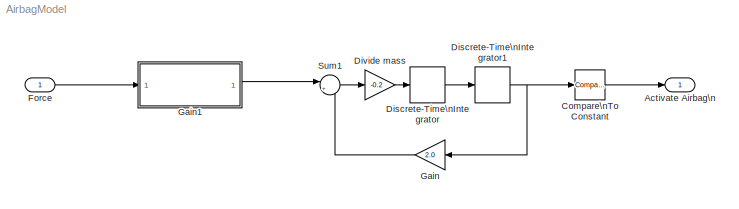
MODEL AirbagModel
KIND model
BLOCK [Outport] Activate Airbag\n
  IconDisplay = Port number
  SID = 14
BLOCK [Reference] Compare\nTo Constant  REF=simulink/Logic and Bit\nOperations/Compare\nTo Constant
  OutDataTypeStr = boolean
  Ports = [1, 1]
  SID = 17
  SourceBlock = simulink/Logic and Bit\nOperations/Compare\nTo Constant
  SourceType = Compare To Constant
  ZeroCross = on
  const = 3.0
  relop = <=
BLOCK [DiscreteIntegrator] Discrete-Time\nIntegrator
  Ports = [1, 1]
  SID = 15
BLOCK [DiscreteIntegrator] Discrete-Time\nIntegrator1
  Ports = [1, 1]
  SID = 16
BLOCK [Gain] Divide mass
  Gain = -0.2
  OutDataTypeStr = Inherit: Inherit via internal rule
  ParamDataTypeStr = Inherit: Inherit via internal rule
  SID = 9
  SaturateOnIntegerOverflow = off
BLOCK [Inport] Force
  IconDisplay = Port number
  OutDataTypeStr = single
  SID = 8
BLOCK [Gain] Gain
  Gain = 2.0
  OutDataTypeStr = Inherit: Inherit via internal rule
  ParamDataTypeStr = Inherit: Inherit via internal rule
  SID = 10
  SaturateOnIntegerOverflow = off
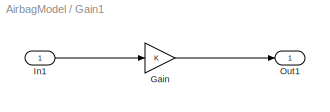
BLOCK [SubSystem] Gain1
  Ports = [1, 1]
  RequestExecContextInheritance = off
  SID = 19
BLOCK [Gain] Gain1/Gain
  OutDataTypeStr = Inherit: Inherit via internal rule
  ParamDataTypeStr = Inherit: Inherit via internal rule
  SID = 21
  SaturateOnIntegerOverflow = off
BLOCK [Inport] Gain1/In1
  IconDisplay = Port number
  SID = 20
BLOCK [Outport] Gain1/Out1
  IconDisplay = Port number
  SID = 22
BLOCK [Sum] Sum1
  IconShape = round
  InputSameDT = off
  Inputs = |+-
  OutDataTypeStr = Inherit: Inherit via internal rule
  Ports = [2, 1]
  SID = 13
  SaturateOnIntegerOverflow = off
LINE Compare\nTo Constant:1 -> Activate Airbag\n:1
NET Discrete-Time\nIntegrator1:1 -> Compare\nTo Constant:1, Gain:1
LINE Discrete-Time\nIntegrator:1 -> Discrete-Time\nIntegrator1:1
LINE Divide mass:1 -> Discrete-Time\nIntegrator:1
LINE Force:1 -> Gain1:1
LINE Gain1/Gain:1 -> Gain1/Out1:1
LINE Gain1/In1:1 -> Gain1/Gain:1
LINE Gain1:1 -> Sum1:1
LINE Gain:1 -> Sum1:2
LINE Sum1:1 -> Divide mass:1
note: NET lines group one-source signal fan-out (src -> all destinations, sorted); 1:1 wires keep LINE
